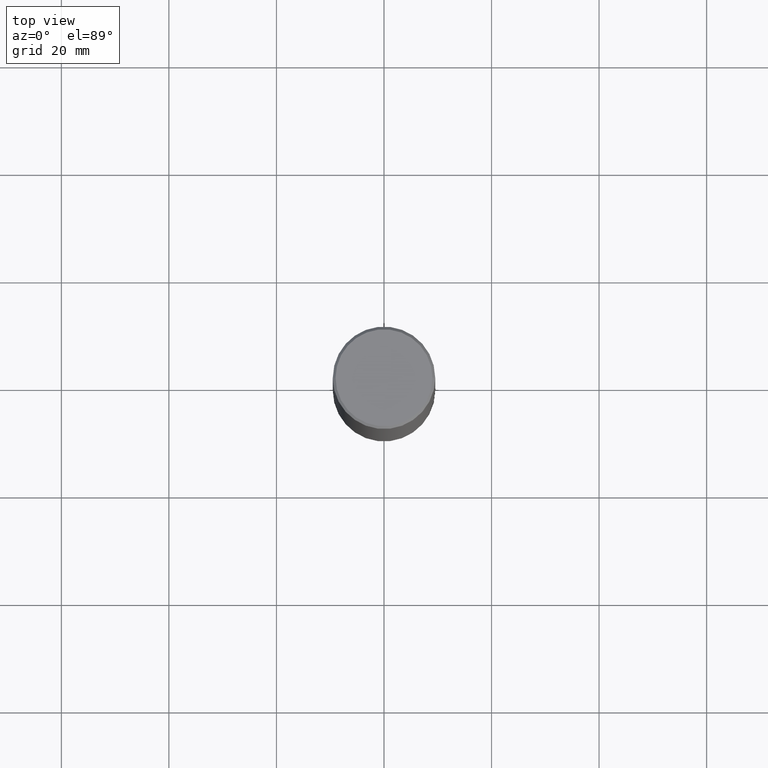
[diagram: clean part render]
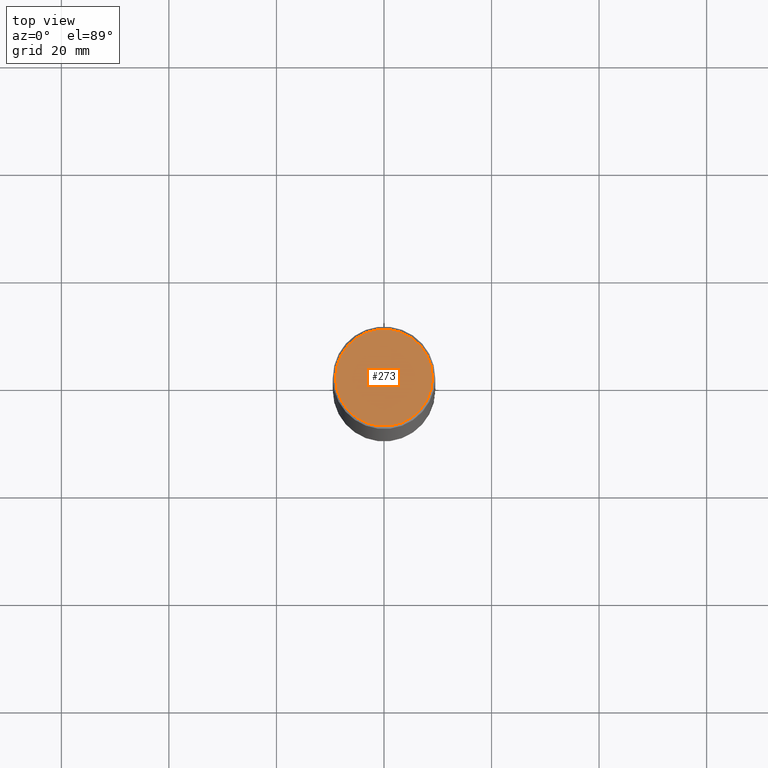
[diagram: same view with one face highlighted and labeled with its STEP entity id]
A machine part, top view. The second image highlights one B-rep face of the part: STEP entity #273.
In plain terms, the highlighted planar face has unit normal (0, -0, -1).
Its self-contained STEP definition (entity closure, byte-faithful):
#3 = CIRCLE ( 'NONE', #90, 0.3549999999999994271 ) ;
#6 = CARTESIAN_POINT ( 'NONE',  ( 2.478951750578620659E-15, 0.3549999999999994271, -1.235207362799214242E-15 ) ) ;
#11 = DIRECTION ( 'NONE',  ( 1.000000000000000000, -6.982962677686266711E-15, 4.876231632511996030E-29 ) ) ;
#24 = EDGE_LOOP ( 'NONE', ( #248, #191 ) ) ;
#31 = AXIS2_PLACEMENT_3D ( 'NONE', #267, #121, #11 ) ;
#32 = PLANE ( 'NONE',  #253 ) ;
#47 = CARTESIAN_POINT ( 'NONE',  ( -0.3549999999999994271, 2.513866563967051519E-15, 8.537024980183364388E-18 ) ) ;
#74 = DIRECTION ( 'NONE',  ( 2.438088387897960049E-29, -3.491481338843145188E-15, -1.000000000000000000 ) ) ;
#89 = DIRECTION ( 'NONE',  ( 1.000000000000000000, -6.982962677686266711E-15, 4.876231632511996030E-29 ) ) ;
#90 = AXIS2_PLACEMENT_3D ( 'NONE', #206, #231, #89 ) ;
#109 = VERTEX_POINT ( 'NONE', #47 ) ;
#121 = DIRECTION ( 'NONE',  ( -2.445468806185136597E-29, 3.491481338843145583E-15, 1.000000000000000000 ) ) ;
#167 = CARTESIAN_POINT ( 'NONE',  ( 0.3549999999999994271, -2.538996582575037104E-15, 8.537024980218368550E-18 ) ) ;
#190 = CIRCLE ( 'NONE', #31, 0.3549999999999994271 ) ;
#191 = ORIENTED_EDGE ( 'NONE', *, *, #356, .T. ) ;
#206 = CARTESIAN_POINT ( 'NONE',  ( -2.087702828670439639E-46, 2.980686340760894400E-32, 8.537024980200822558E-18 ) ) ;
#231 = DIRECTION ( 'NONE',  ( -2.445468806185136597E-29, 3.491481338843145583E-15, 1.000000000000000000 ) ) ;
#243 = VERTEX_POINT ( 'NONE', #167 ) ;
#248 = ORIENTED_EDGE ( 'NONE', *, *, #295, .T. ) ;
#253 = AXIS2_PLACEMENT_3D ( 'NONE', #6, #74, #310 ) ;
#262 = FACE_OUTER_BOUND ( 'NONE', #24, .T. ) ;
#267 = CARTESIAN_POINT ( 'NONE',  ( -2.087702828670439639E-46, 2.980686340760894400E-32, 8.537024980200822558E-18 ) ) ;
#273 = ADVANCED_FACE ( 'NONE', ( #262 ), #32, .F. ) ;
#295 = EDGE_CURVE ( 'NONE', #109, #243, #3, .T. ) ;
#310 = DIRECTION ( 'NONE',  ( -1.000000000000000000, 6.982962677686265922E-15, -4.876176775795935793E-29 ) ) ;
#356 = EDGE_CURVE ( 'NONE', #243, #109, #190, .T. ) ;